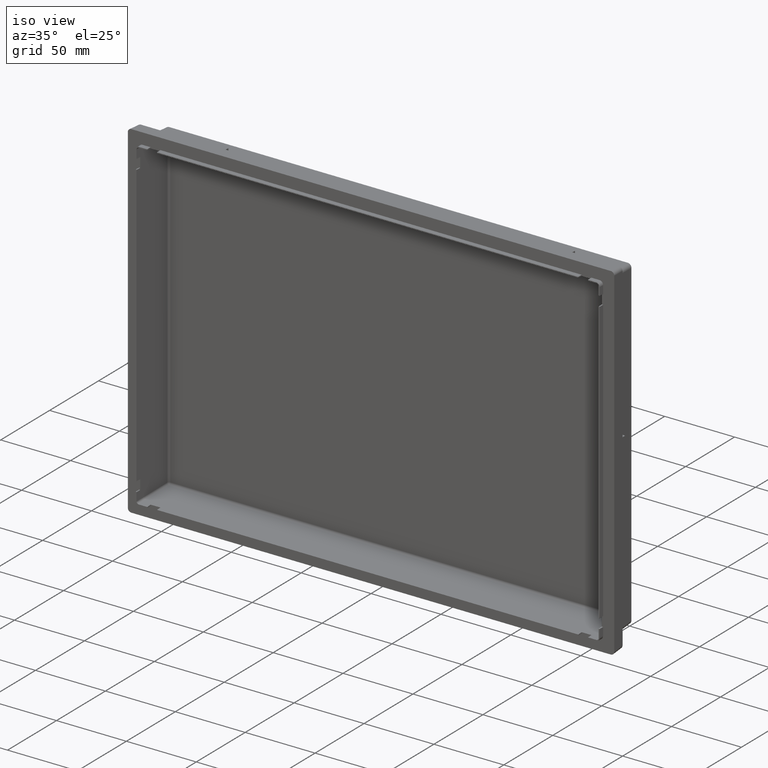
[diagram: clean part render]
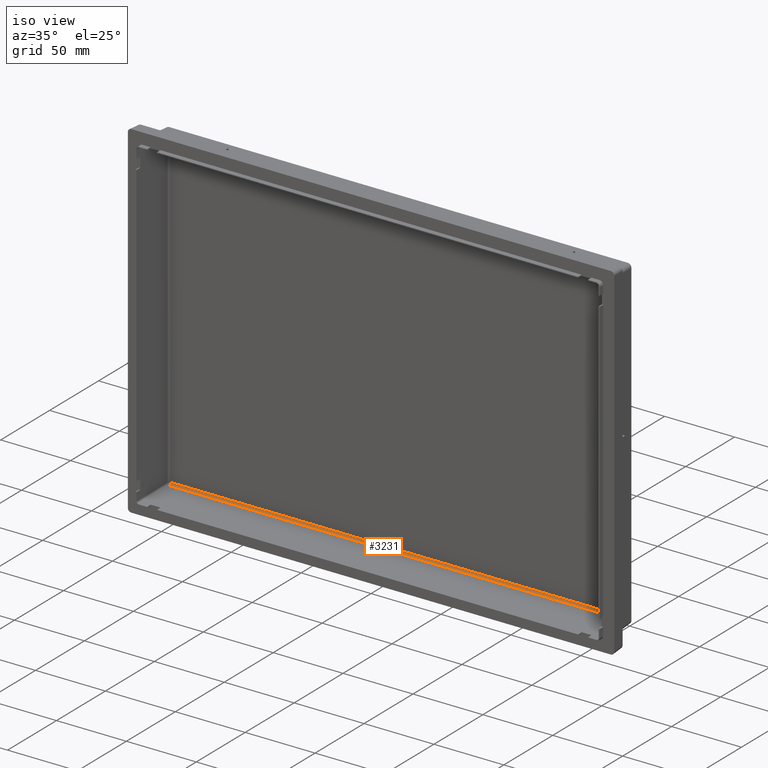
[diagram: same view with one face highlighted and labeled with its STEP entity id]
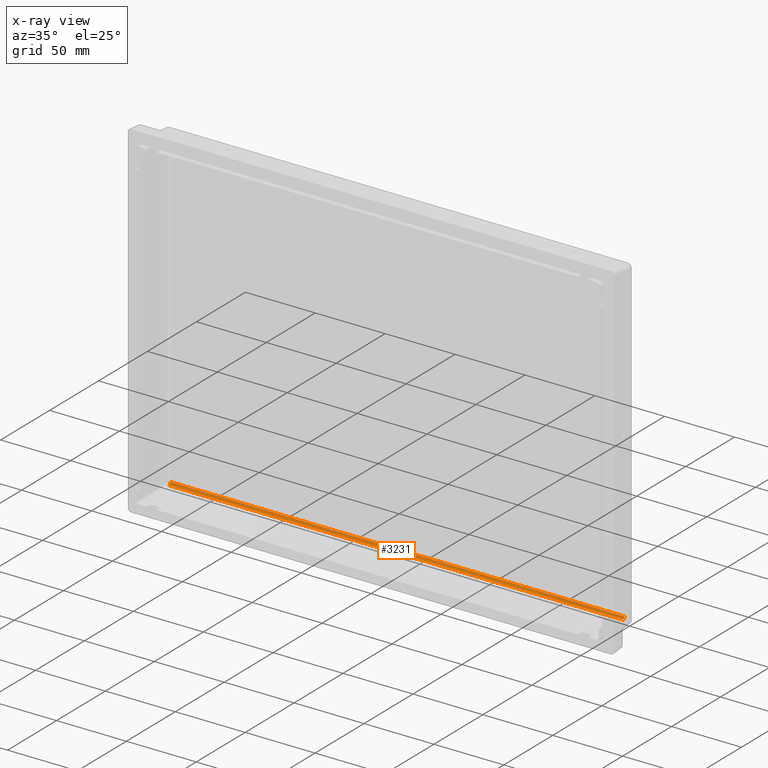
[diagram: x-ray of the same camera — body ghosted, the highlighted face saturated]
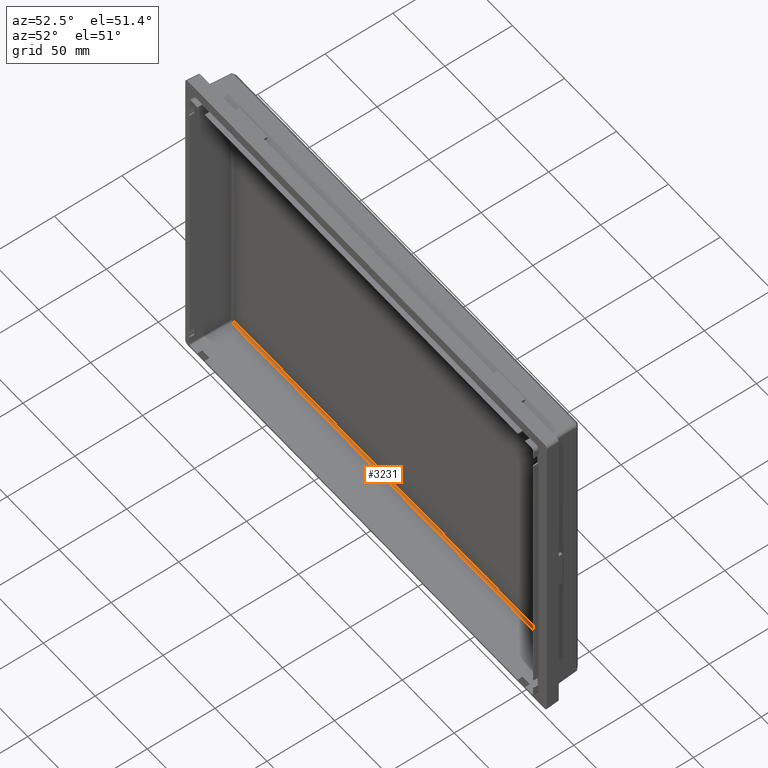
[diagram: same view with one face highlighted and labeled with its STEP entity id]
A machine part, iso view. The second image highlights one B-rep face of the part: STEP entity #3231.
The next image is the same camera in x-ray: the body ghosted, the highlighted face saturated — about 0% of this face is hidden behind the body in this view.
A second angle (auxiliary view) of the same face is appended — the face is thin or edge-on in the first view.
In plain terms, the highlighted cylindrical surface (edge-blend (fillet) strip) has radius 1.5 mm, axis along (1, 0, 0).
Its self-contained STEP definition (entity closure, byte-faithful):
#617 = CARTESIAN_POINT ( 'NONE',  ( 162.2742833357999900, 25.57850393436000000, -113.7722276379000000 ) ) ;
#620 = CARTESIAN_POINT ( 'NONE',  ( -162.2742833357999900, 25.57850393436000000, -113.7722276379000000 ) ) ;
#621 = CARTESIAN_POINT ( 'NONE',  ( -162.2742833357999900, 27.00000000000000000, -112.2742833358000200 ) ) ;
#624 = CARTESIAN_POINT ( 'NONE',  ( 162.2742833357999900, 27.00000000000000000, -112.2742833358000200 ) ) ;
#752 = CARTESIAN_POINT ( 'NONE',  ( -165.0178843205000300, 25.50000000000000400, -112.2742833358000200 ) ) ;
#753 = DIRECTION ( 'NONE',  ( 1.000000000000000000, 0.0000000000000000000, 0.0000000000000000000 ) ) ;
#754 = DIRECTION ( 'NONE',  ( 0.0000000000000000000, 0.05233595624293953300, -0.9986295347545740600 ) ) ;
#1005 = ORIENTED_EDGE ( 'NONE', *, *, #4237, .T. ) ;
#1006 = ORIENTED_EDGE ( 'NONE', *, *, #4221, .F. ) ;
#1007 = ORIENTED_EDGE ( 'NONE', *, *, #4226, .T. ) ;
#1008 = ORIENTED_EDGE ( 'NONE', *, *, #4206, .F. ) ;
#1211 = EDGE_LOOP ( 'NONE', ( #1005, #1008, #1006, #1007 ) ) ;
#1415 = FACE_OUTER_BOUND ( 'NONE', #1211, .T. ) ;
#1416 = CYLINDRICAL_SURFACE ( 'NONE', #2550, 1.500000000000001100 ) ;
#1472 = LINE ( 'NONE', #2962, #2597 ) ;
#1489 = LINE ( 'NONE', #3008, #2620 ) ;
#2082 = VERTEX_POINT ( 'NONE', #617 ) ;
#2085 = VERTEX_POINT ( 'NONE', #620 ) ;
#2086 = VERTEX_POINT ( 'NONE', #621 ) ;
#2089 = VERTEX_POINT ( 'NONE', #624 ) ;
#2550 = AXIS2_PLACEMENT_3D ( 'NONE', #752, #753, #754 ) ;
#2594 = CIRCLE ( 'NONE', #2632, 1.500000000000001100 ) ;
#2597 = VECTOR ( 'NONE', #2963, 1000.000000000000000 ) ;
#2611 = CIRCLE ( 'NONE', #2613, 1.500000000000001100 ) ;
#2613 = AXIS2_PLACEMENT_3D ( 'NONE', #2996, #2997, #2998 ) ;
#2620 = VECTOR ( 'NONE', #3009, 1000.000000000000000 ) ;
#2632 = AXIS2_PLACEMENT_3D ( 'NONE', #3044, #3045, #3046 ) ;
#2962 = CARTESIAN_POINT ( 'NONE',  ( -162.2742833357999900, 27.00000000000000000, -112.2742833358000200 ) ) ;
#2963 = DIRECTION ( 'NONE',  ( 1.000000000000000000, 0.0000000000000000000, 0.0000000000000000000 ) ) ;
#2996 = CARTESIAN_POINT ( 'NONE',  ( -162.2742833357999900, 25.50000000000000400, -112.2742833358000200 ) ) ;
#2997 = DIRECTION ( 'NONE',  ( 1.000000000000000000, 0.0000000000000000000, 0.0000000000000000000 ) ) ;
#2998 = DIRECTION ( 'NONE',  ( 0.0000000000000000000, 0.05233595624293953300, -0.9986295347545740600 ) ) ;
#3008 = CARTESIAN_POINT ( 'NONE',  ( -162.2742833357000100, 25.57850393437000100, -113.7722276379000000 ) ) ;
#3009 = DIRECTION ( 'NONE',  ( 1.000000000000000000, 0.0000000000000000000, 0.0000000000000000000 ) ) ;
#3044 = CARTESIAN_POINT ( 'NONE',  ( 162.2742833357999900, 25.50000000000000400, -112.2742833358000200 ) ) ;
#3045 = DIRECTION ( 'NONE',  ( 1.000000000000000000, 0.0000000000000000000, 0.0000000000000000000 ) ) ;
#3046 = DIRECTION ( 'NONE',  ( 0.0000000000000000000, 0.05233595624293953300, -0.9986295347545740600 ) ) ;
#3231 = ADVANCED_FACE ( 'NONE', ( #1415 ), #1416, .F. ) ;
#4206 = EDGE_CURVE ( 'NONE', #2086, #2089, #1472, .T. ) ;
#4221 = EDGE_CURVE ( 'NONE', #2085, #2086, #2611, .T. ) ;
#4226 = EDGE_CURVE ( 'NONE', #2085, #2082, #1489, .T. ) ;
#4237 = EDGE_CURVE ( 'NONE', #2082, #2089, #2594, .T. ) ;